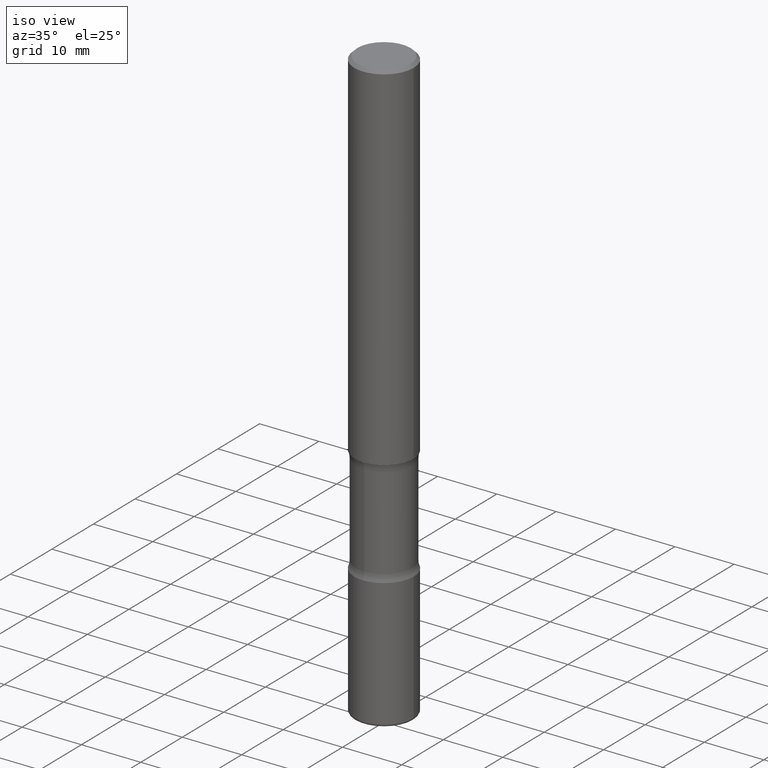
[diagram: clean part render]
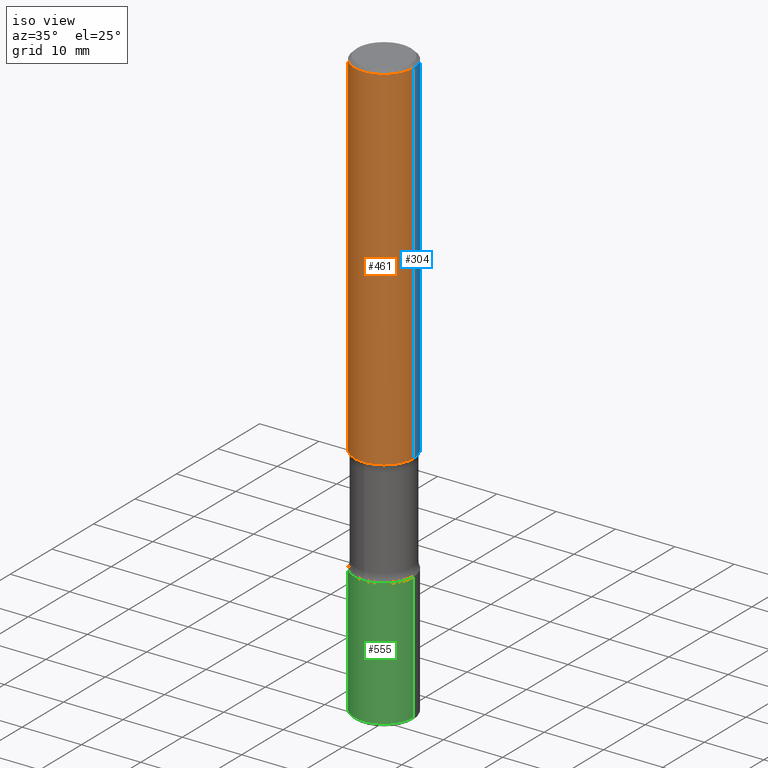
[diagram: same view with three faces highlighted in distinct colors, each labeled with its STEP entity id]
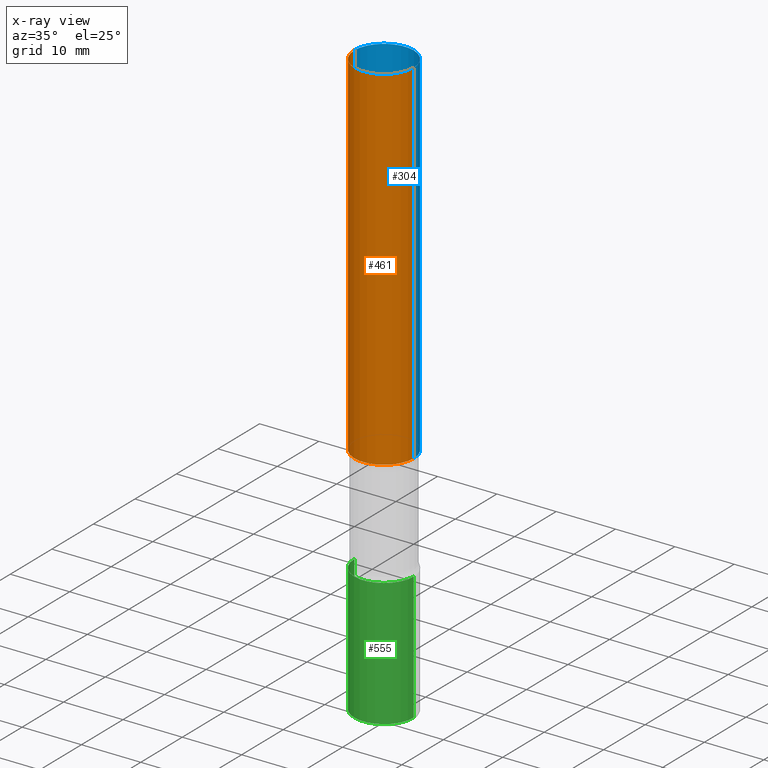
[diagram: x-ray of the same camera — body ghosted, the three highlighted faces saturated]
A machine part, iso view with three faces highlighted in distinct colors.
The next image is the same camera in x-ray (body ghosted, the three faces saturated) — at least one of them is partly hidden behind the body in this view.
Their STEP definitions:

[orange] entity #461 — the highlighted cylindrical surface (edge-blend (fillet) strip) has radius 5 mm, axis along (-0, 0, 1).
#13 = DIRECTION ( 'NONE',  ( 1.000000000000000000, -6.982962677686265133E-15, 0.000000000000000000 ) ) ;
#55 = CARTESIAN_POINT ( 'NONE',  ( 0.1968500000000000527, -1.374596203102542003E-15, 9.598753983154302260E-30 ) ) ;
#71 = VERTEX_POINT ( 'NONE', #155 ) ;
#84 = CARTESIAN_POINT ( 'NONE',  ( 0.000000000000000000, 0.000000000000000000, 0.000000000000000000 ) ) ;
#85 = VERTEX_POINT ( 'NONE', #91 ) ;
#91 = CARTESIAN_POINT ( 'NONE',  ( -0.1968500000000001360, -2.760000047352310125E-15, -2.362200000000000077 ) ) ;
#97 = AXIS2_PLACEMENT_3D ( 'NONE', #173, #216, #13 ) ;
#155 = CARTESIAN_POINT ( 'NONE',  ( -0.1968499999999999417, 1.304766576325678113E-15, -0.02000000000000006981 ) ) ;
#163 = EDGE_CURVE ( 'NONE', #85, #71, #360, .T. ) ;
#166 = ORIENTED_EDGE ( 'NONE', *, *, #363, .F. ) ;
#173 = CARTESIAN_POINT ( 'NONE',  ( 5.776686413970529753E-29, -8.247577218615279626E-15, -2.362200000000000077 ) ) ;
#178 = LINE ( 'NONE', #55, #517 ) ;
#179 = VERTEX_POINT ( 'NONE', #396 ) ;
#202 = CARTESIAN_POINT ( 'NONE',  ( 4.890937612370289799E-31, -6.982962677686315028E-17, -0.02000000000000006981 ) ) ;
#216 = DIRECTION ( 'NONE',  ( -2.445468806185136597E-29, 3.491481338843145583E-15, 1.000000000000000000 ) ) ;
#233 = ORIENTED_EDGE ( 'NONE', *, *, #163, .F. ) ;
#243 = EDGE_CURVE ( 'NONE', #179, #425, #178, .T. ) ;
#252 = EDGE_LOOP ( 'NONE', ( #233, #341, #382, #166 ) ) ;
#279 = AXIS2_PLACEMENT_3D ( 'NONE', #84, #515, #291 ) ;
#283 = DIRECTION ( 'NONE',  ( 1.000000000000000000, -6.982962677686266711E-15, 0.000000000000000000 ) ) ;
#291 = DIRECTION ( 'NONE',  ( 1.000000000000000000, -6.982962677686266711E-15, 4.876176775795935793E-29 ) ) ;
#294 = VECTOR ( 'NONE', #400, 39.37007874015748143 ) ;
#296 = FACE_OUTER_BOUND ( 'NONE', #252, .T. ) ;
#298 = CYLINDRICAL_SURFACE ( 'NONE', #279, 0.1968500000000000527 ) ;
#338 = CIRCLE ( 'NONE', #97, 0.1968500000000001082 ) ;
#341 = ORIENTED_EDGE ( 'NONE', *, *, #544, .T. ) ;
#351 = DIRECTION ( 'NONE',  ( -2.445468806185136877E-29, 3.491481338843145188E-15, 1.000000000000000000 ) ) ;
#360 = LINE ( 'NONE', #446, #294 ) ;
#363 = EDGE_CURVE ( 'NONE', #71, #425, #429, .T. ) ;
#382 = ORIENTED_EDGE ( 'NONE', *, *, #243, .T. ) ;
#383 = CARTESIAN_POINT ( 'NONE',  ( 0.1968499999999999417, -1.420318657638188727E-15, -0.02000000000000006981 ) ) ;
#396 = CARTESIAN_POINT ( 'NONE',  ( 0.1968500000000001082, -9.622173421717821235E-15, -2.362200000000000077 ) ) ;
#400 = DIRECTION ( 'NONE',  ( -2.445468806185136877E-29, 3.491481338843145188E-15, 1.000000000000000000 ) ) ;
#418 = DIRECTION ( 'NONE',  ( -2.445468806185136597E-29, 3.491481338843145583E-15, 1.000000000000000000 ) ) ;
#425 = VERTEX_POINT ( 'NONE', #383 ) ;
#429 = CIRCLE ( 'NONE', #464, 0.1968499999999999417 ) ;
#446 = CARTESIAN_POINT ( 'NONE',  ( -0.1968500000000000527, 1.398703375343757590E-15, -9.682923725166785079E-30 ) ) ;
#461 = ADVANCED_FACE ( 'NONE', ( #296 ), #298, .T. ) ;
#464 = AXIS2_PLACEMENT_3D ( 'NONE', #202, #418, #283 ) ;
#515 = DIRECTION ( 'NONE',  ( -2.445468806185136597E-29, 3.491481338843145583E-15, 1.000000000000000000 ) ) ;
#517 = VECTOR ( 'NONE', #351, 39.37007874015748143 ) ;
#544 = EDGE_CURVE ( 'NONE', #85, #179, #338, .T. ) ;

[blue] entity #304 — the highlighted cylindrical surface (edge-blend (fillet) strip) has radius 5 mm, axis along (-0, 0, 1).
#28 = CIRCLE ( 'NONE', #289, 0.1968499999999999417 ) ;
#55 = CARTESIAN_POINT ( 'NONE',  ( 0.1968500000000000527, -1.374596203102542003E-15, 9.598753983154302260E-30 ) ) ;
#63 = EDGE_CURVE ( 'NONE', #179, #85, #390, .T. ) ;
#67 = CYLINDRICAL_SURFACE ( 'NONE', #454, 0.1968500000000000527 ) ;
#71 = VERTEX_POINT ( 'NONE', #155 ) ;
#77 = CARTESIAN_POINT ( 'NONE',  ( 4.890937612370289799E-31, -6.982962677686315028E-17, -0.02000000000000006981 ) ) ;
#85 = VERTEX_POINT ( 'NONE', #91 ) ;
#91 = CARTESIAN_POINT ( 'NONE',  ( -0.1968500000000001360, -2.760000047352310125E-15, -2.362200000000000077 ) ) ;
#115 = DIRECTION ( 'NONE',  ( -2.445468806185136597E-29, 3.491481338843145583E-15, 1.000000000000000000 ) ) ;
#116 = DIRECTION ( 'NONE',  ( 1.000000000000000000, -6.982962677686265133E-15, 0.000000000000000000 ) ) ;
#144 = ORIENTED_EDGE ( 'NONE', *, *, #431, .F. ) ;
#155 = CARTESIAN_POINT ( 'NONE',  ( -0.1968499999999999417, 1.304766576325678113E-15, -0.02000000000000006981 ) ) ;
#162 = ORIENTED_EDGE ( 'NONE', *, *, #163, .T. ) ;
#163 = EDGE_CURVE ( 'NONE', #85, #71, #360, .T. ) ;
#178 = LINE ( 'NONE', #55, #517 ) ;
#179 = VERTEX_POINT ( 'NONE', #396 ) ;
#185 = CARTESIAN_POINT ( 'NONE',  ( 5.776686413970529753E-29, -8.247577218615279626E-15, -2.362200000000000077 ) ) ;
#217 = AXIS2_PLACEMENT_3D ( 'NONE', #185, #531, #116 ) ;
#235 = DIRECTION ( 'NONE',  ( 1.000000000000000000, -6.982962677686266711E-15, 4.876176775795935793E-29 ) ) ;
#242 = CARTESIAN_POINT ( 'NONE',  ( 0.000000000000000000, 0.000000000000000000, 0.000000000000000000 ) ) ;
#243 = EDGE_CURVE ( 'NONE', #179, #425, #178, .T. ) ;
#289 = AXIS2_PLACEMENT_3D ( 'NONE', #77, #318, #340 ) ;
#294 = VECTOR ( 'NONE', #400, 39.37007874015748143 ) ;
#304 = ADVANCED_FACE ( 'NONE', ( #543 ), #67, .T. ) ;
#318 = DIRECTION ( 'NONE',  ( -2.445468806185136597E-29, 3.491481338843145583E-15, 1.000000000000000000 ) ) ;
#336 = ORIENTED_EDGE ( 'NONE', *, *, #243, .F. ) ;
#340 = DIRECTION ( 'NONE',  ( 1.000000000000000000, -6.982962677686266711E-15, 0.000000000000000000 ) ) ;
#351 = DIRECTION ( 'NONE',  ( -2.445468806185136877E-29, 3.491481338843145188E-15, 1.000000000000000000 ) ) ;
#360 = LINE ( 'NONE', #446, #294 ) ;
#383 = CARTESIAN_POINT ( 'NONE',  ( 0.1968499999999999417, -1.420318657638188727E-15, -0.02000000000000006981 ) ) ;
#390 = CIRCLE ( 'NONE', #217, 0.1968500000000001082 ) ;
#396 = CARTESIAN_POINT ( 'NONE',  ( 0.1968500000000001082, -9.622173421717821235E-15, -2.362200000000000077 ) ) ;
#400 = DIRECTION ( 'NONE',  ( -2.445468806185136877E-29, 3.491481338843145188E-15, 1.000000000000000000 ) ) ;
#425 = VERTEX_POINT ( 'NONE', #383 ) ;
#431 = EDGE_CURVE ( 'NONE', #425, #71, #28, .T. ) ;
#446 = CARTESIAN_POINT ( 'NONE',  ( -0.1968500000000000527, 1.398703375343757590E-15, -9.682923725166785079E-30 ) ) ;
#454 = AXIS2_PLACEMENT_3D ( 'NONE', #242, #115, #235 ) ;
#491 = EDGE_LOOP ( 'NONE', ( #524, #162, #144, #336 ) ) ;
#517 = VECTOR ( 'NONE', #351, 39.37007874015748143 ) ;
#524 = ORIENTED_EDGE ( 'NONE', *, *, #63, .T. ) ;
#531 = DIRECTION ( 'NONE',  ( -2.445468806185136597E-29, 3.491481338843145583E-15, 1.000000000000000000 ) ) ;
#543 = FACE_OUTER_BOUND ( 'NONE', #491, .T. ) ;

[green] entity #555 — the highlighted cylindrical surface (edge-blend (fillet) strip) has radius 5 mm, axis along (-0, 0, 1).
#18 = AXIS2_PLACEMENT_3D ( 'NONE', #355, #311, #346 ) ;
#25 = LINE ( 'NONE', #550, #339 ) ;
#48 = LINE ( 'NONE', #170, #98 ) ;
#58 = ORIENTED_EDGE ( 'NONE', *, *, #386, .T. ) ;
#59 = DIRECTION ( 'NONE',  ( -2.445468806185136597E-29, 3.491481338843145583E-15, 1.000000000000000000 ) ) ;
#83 = VERTEX_POINT ( 'NONE', #320 ) ;
#92 = ORIENTED_EDGE ( 'NONE', *, *, #513, .F. ) ;
#98 = VECTOR ( 'NONE', #303, 39.37007874015748143 ) ;
#106 = EDGE_CURVE ( 'NONE', #83, #452, #453, .T. ) ;
#107 = DIRECTION ( 'NONE',  ( 1.000000000000000000, -6.982962677686272233E-15, 0.000000000000000000 ) ) ;
#160 = DIRECTION ( 'NONE',  ( -2.445468806185136877E-29, 3.491481338843145188E-15, 1.000000000000000000 ) ) ;
#169 = CARTESIAN_POINT ( 'NONE',  ( 0.1968500000000001915, -1.209658624655596058E-14, -3.070900000000000407 ) ) ;
#170 = CARTESIAN_POINT ( 'NONE',  ( -0.1968500000000001360, 1.398703375343758182E-15, -9.682923725166790684E-30 ) ) ;
#181 = CYLINDRICAL_SURFACE ( 'NONE', #18, 0.1968500000000001360 ) ;
#197 = CARTESIAN_POINT ( 'NONE',  ( -0.1968500000000001915, -1.080088157070807781E-14, -3.070900000000000407 ) ) ;
#214 = CARTESIAN_POINT ( 'NONE',  ( 9.579634954469036932E-29, -1.367717984865025539E-14, -3.917300000000000448 ) ) ;
#215 = ORIENTED_EDGE ( 'NONE', *, *, #106, .T. ) ;
#225 = DIRECTION ( 'NONE',  ( -2.445468806185136597E-29, 3.491481338843145583E-15, 1.000000000000000000 ) ) ;
#228 = ORIENTED_EDGE ( 'NONE', *, *, #247, .F. ) ;
#247 = EDGE_CURVE ( 'NONE', #335, #426, #277, .T. ) ;
#277 = CIRCLE ( 'NONE', #312, 0.1968500000000001915 ) ;
#303 = DIRECTION ( 'NONE',  ( -2.445468806185136877E-29, 3.491481338843145188E-15, 1.000000000000000000 ) ) ;
#311 = DIRECTION ( 'NONE',  ( -2.445468806185136597E-29, 3.491481338843145583E-15, 1.000000000000000000 ) ) ;
#312 = AXIS2_PLACEMENT_3D ( 'NONE', #450, #59, #107 ) ;
#320 = CARTESIAN_POINT ( 'NONE',  ( -0.1968500000000000805, -1.227847647330649996E-14, -3.917300000000000448 ) ) ;
#334 = CARTESIAN_POINT ( 'NONE',  ( 0.1968500000000000805, -1.505177605175279857E-14, -3.917300000000000448 ) ) ;
#335 = VERTEX_POINT ( 'NONE', #197 ) ;
#337 = AXIS2_PLACEMENT_3D ( 'NONE', #214, #225, #389 ) ;
#339 = VECTOR ( 'NONE', #160, 39.37007874015748143 ) ;
#346 = DIRECTION ( 'NONE',  ( 1.000000000000000000, -6.982962677686266711E-15, 4.876176775795935793E-29 ) ) ;
#355 = CARTESIAN_POINT ( 'NONE',  ( 0.000000000000000000, 0.000000000000000000, 0.000000000000000000 ) ) ;
#386 = EDGE_CURVE ( 'NONE', #452, #426, #25, .T. ) ;
#389 = DIRECTION ( 'NONE',  ( 1.000000000000000000, -6.982962677686265133E-15, 0.000000000000000000 ) ) ;
#391 = FACE_OUTER_BOUND ( 'NONE', #415, .T. ) ;
#415 = EDGE_LOOP ( 'NONE', ( #92, #215, #58, #228 ) ) ;
#426 = VERTEX_POINT ( 'NONE', #169 ) ;
#450 = CARTESIAN_POINT ( 'NONE',  ( 7.509790156913936305E-29, -1.072199004345341739E-14, -3.070900000000000407 ) ) ;
#452 = VERTEX_POINT ( 'NONE', #334 ) ;
#453 = CIRCLE ( 'NONE', #337, 0.1968500000000001082 ) ;
#513 = EDGE_CURVE ( 'NONE', #83, #335, #48, .T. ) ;
#550 = CARTESIAN_POINT ( 'NONE',  ( 0.1968500000000001360, -1.374596203102542594E-15, 9.598753983154306463E-30 ) ) ;
#555 = ADVANCED_FACE ( 'NONE', ( #391 ), #181, .T. ) ;